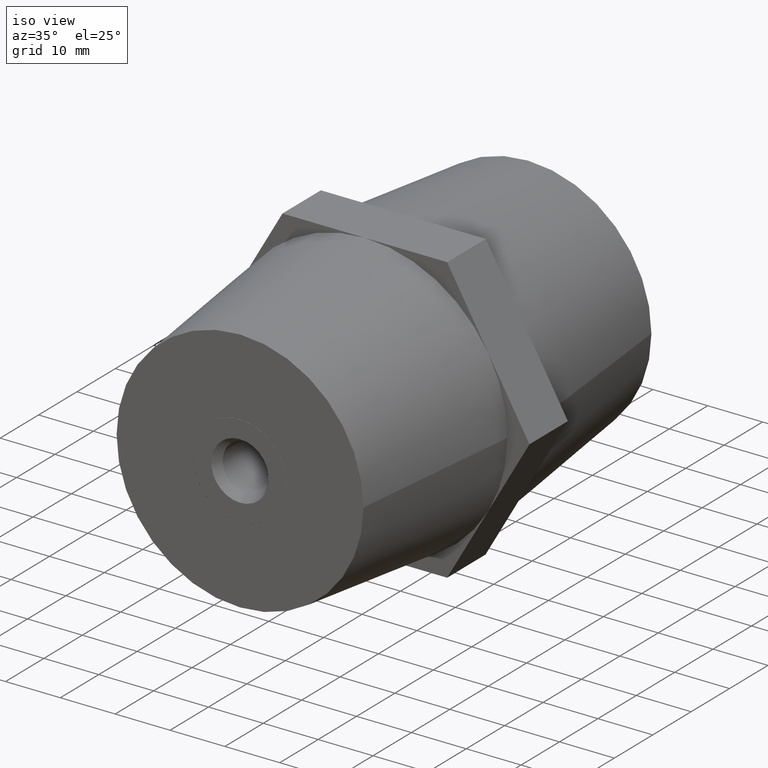
[diagram: clean part render]
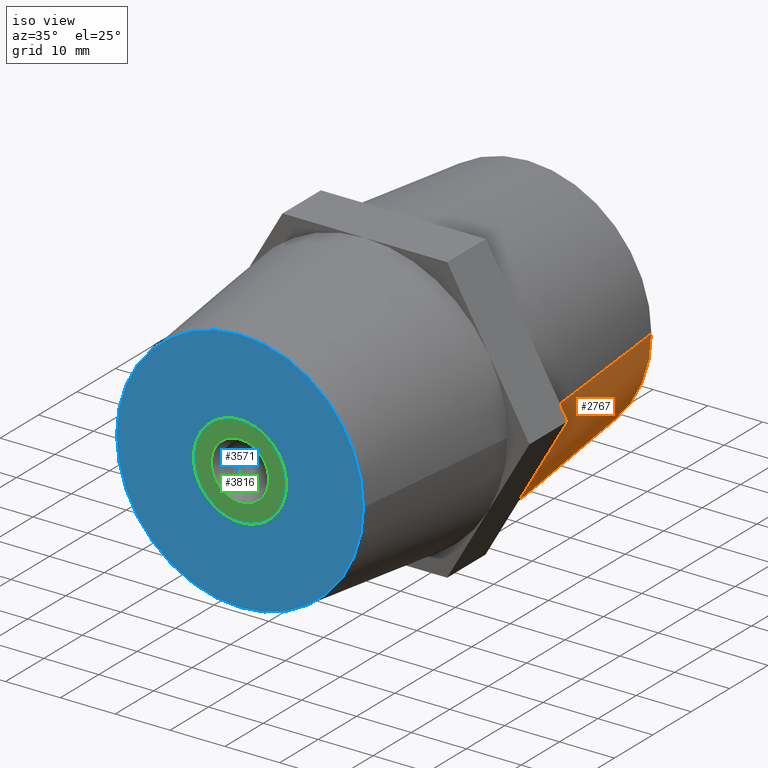
[diagram: same view with three faces highlighted in distinct colors, each labeled with its STEP entity id]
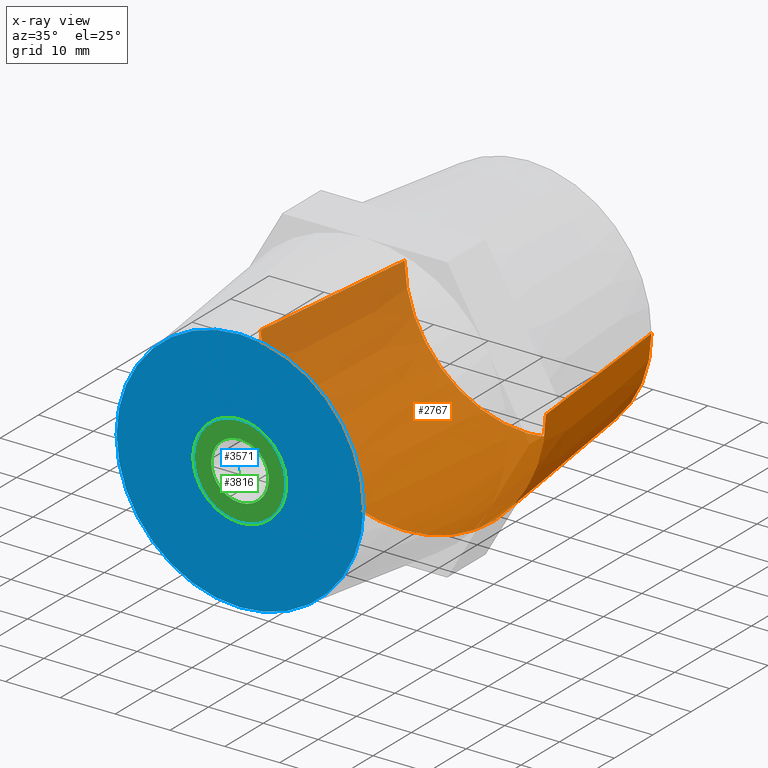
[diagram: x-ray of the same camera — body ghosted, the three highlighted faces saturated]
A machine part, iso view with three faces highlighted in distinct colors.
The next image is the same camera in x-ray (body ghosted, the three faces saturated) — at least one of them is partly hidden behind the body in this view.
Their STEP definitions:

[orange] entity #2767 — the highlighted conical surface has half-angle 6.147 deg.
#108 = LINE ( 'NONE', #629, #933 ) ;
#118 = DIRECTION ( 'NONE',  ( 1.000000000000000000, 0.0000000000000000000, 0.0000000000000000000 ) ) ;
#188 = ORIENTED_EDGE ( 'NONE', *, *, #345, .T. ) ;
#196 = CIRCLE ( 'NONE', #1039, 26.00000000000000000 ) ;
#278 = VERTEX_POINT ( 'NONE', #1783 ) ;
#345 = EDGE_CURVE ( 'NONE', #2445, #2419, #1085, .T. ) ;
#500 = AXIS2_PLACEMENT_3D ( 'NONE', #1423, #3244, #3556 ) ;
#629 = CARTESIAN_POINT ( 'NONE',  ( -22.50000000000000000, 37.50000000000000000, 2.755455298081544800E-015 ) ) ;
#741 = CARTESIAN_POINT ( 'NONE',  ( 26.00000000000001800, 5.000000000000000000, 0.0000000000000000000 ) ) ;
#761 = CARTESIAN_POINT ( 'NONE',  ( 22.50000000000000000, 37.50000000000000000, 0.0000000000000000000 ) ) ;
#844 = CIRCLE ( 'NONE', #3443, 26.00000000000000000 ) ;
#923 = DIRECTION ( 'NONE',  ( -1.000000000000000000, 0.0000000000000000000, 0.0000000000000000000 ) ) ;
#932 = DIRECTION ( 'NONE',  ( -1.387778780781445900E-016, 1.000000000000000000, 0.0000000000000000000 ) ) ;
#933 = VECTOR ( 'NONE', #3958, 1000.000000000000000 ) ;
#970 = ORIENTED_EDGE ( 'NONE', *, *, #3764, .T. ) ;
#1031 = EDGE_CURVE ( 'NONE', #2412, #2176, #1229, .T. ) ;
#1039 = AXIS2_PLACEMENT_3D ( 'NONE', #3515, #1695, #2628 ) ;
#1076 = DIRECTION ( 'NONE',  ( 1.387778780781445900E-016, -1.000000000000000000, 0.0000000000000000000 ) ) ;
#1085 = CIRCLE ( 'NONE', #2032, 26.00000000000000000 ) ;
#1096 = AXIS2_PLACEMENT_3D ( 'NONE', #1508, #1193, #923 ) ;
#1132 = ORIENTED_EDGE ( 'NONE', *, *, #3711, .T. ) ;
#1193 = DIRECTION ( 'NONE',  ( -1.387778780781445900E-016, 1.000000000000000000, 0.0000000000000000000 ) ) ;
#1201 = EDGE_LOOP ( 'NONE', ( #1883, #1673, #2599, #970, #188, #1132, #2713 ) ) ;
#1206 = VERTEX_POINT ( 'NONE', #3164 ) ;
#1229 = LINE ( 'NONE', #2073, #1953 ) ;
#1242 = DIRECTION ( 'NONE',  ( -1.000000000000000000, -1.334402673828313100E-016, 0.0000000000000000000 ) ) ;
#1373 = CONICAL_SURFACE ( 'NONE', #3418, 22.50000000000000000, 0.1072788556484030900 ) ;
#1423 = CARTESIAN_POINT ( 'NONE',  ( 4.510281037539699200E-015, 5.000000000000000000, 0.0000000000000000000 ) ) ;
#1508 = CARTESIAN_POINT ( 'NONE',  ( -4.333342374871279800E-031, 37.50000000000000000, 0.0000000000000000000 ) ) ;
#1673 = ORIENTED_EDGE ( 'NONE', *, *, #3472, .F. ) ;
#1695 = DIRECTION ( 'NONE',  ( -1.387778780781445900E-016, 1.000000000000000000, 0.0000000000000000000 ) ) ;
#1702 = EDGE_CURVE ( 'NONE', #278, #1206, #844, .T. ) ;
#1746 = DIRECTION ( 'NONE',  ( -1.000000000000000000, -1.334402673828313100E-016, 0.0000000000000000000 ) ) ;
#1773 = DIRECTION ( 'NONE',  ( 0.1070731997199519000, -0.9942511402566915900, 0.0000000000000000000 ) ) ;
#1783 = CARTESIAN_POINT ( 'NONE',  ( -22.51666049839540000, 5.000000000000000000, -13.00000000000000000 ) ) ;
#1883 = ORIENTED_EDGE ( 'NONE', *, *, #3054, .F. ) ;
#1953 = VECTOR ( 'NONE', #1773, 1000.000000000000000 ) ;
#1956 = CARTESIAN_POINT ( 'NONE',  ( -4.333342374871279800E-031, 5.000000000000000000, -26.00000000000000000 ) ) ;
#1998 = FACE_OUTER_BOUND ( 'NONE', #1201, .T. ) ;
#2032 = AXIS2_PLACEMENT_3D ( 'NONE', #2204, #932, #1242 ) ;
#2037 = DIRECTION ( 'NONE',  ( -1.387778780781445900E-016, 1.000000000000000000, 0.0000000000000000000 ) ) ;
#2073 = CARTESIAN_POINT ( 'NONE',  ( 22.50000000000000000, 37.50000000000000000, 0.0000000000000000000 ) ) ;
#2141 = CIRCLE ( 'NONE', #500, 26.00000000000000000 ) ;
#2176 = VERTEX_POINT ( 'NONE', #741 ) ;
#2204 = CARTESIAN_POINT ( 'NONE',  ( 4.510281037539699200E-015, 5.000000000000000000, 0.0000000000000000000 ) ) ;
#2412 = VERTEX_POINT ( 'NONE', #761 ) ;
#2419 = VERTEX_POINT ( 'NONE', #1956 ) ;
#2445 = VERTEX_POINT ( 'NONE', #2814 ) ;
#2599 = ORIENTED_EDGE ( 'NONE', *, *, #1031, .T. ) ;
#2628 = DIRECTION ( 'NONE',  ( -1.000000000000000000, -1.334402673828313100E-016, 0.0000000000000000000 ) ) ;
#2713 = ORIENTED_EDGE ( 'NONE', *, *, #1702, .T. ) ;
#2767 = ADVANCED_FACE ( 'NONE', ( #1998 ), #1373, .T. ) ;
#2811 = VERTEX_POINT ( 'NONE', #3212 ) ;
#2814 = CARTESIAN_POINT ( 'NONE',  ( 22.51666049839540000, 5.000000000000000000, -13.00000000000000000 ) ) ;
#3054 = EDGE_CURVE ( 'NONE', #2811, #1206, #108, .T. ) ;
#3164 = CARTESIAN_POINT ( 'NONE',  ( -26.00000000000000700, 5.000000000000000000, 3.184081677783119800E-015 ) ) ;
#3194 = CARTESIAN_POINT ( 'NONE',  ( 4.510281037539699200E-015, 5.000000000000000000, 0.0000000000000000000 ) ) ;
#3212 = CARTESIAN_POINT ( 'NONE',  ( -22.50000000000000000, 37.50000000000000000, 2.969768487932332100E-015 ) ) ;
#3238 = CIRCLE ( 'NONE', #1096, 22.50000000000000000 ) ;
#3244 = DIRECTION ( 'NONE',  ( -1.387778780781445900E-016, 1.000000000000000000, 0.0000000000000000000 ) ) ;
#3418 = AXIS2_PLACEMENT_3D ( 'NONE', #3535, #1076, #118 ) ;
#3443 = AXIS2_PLACEMENT_3D ( 'NONE', #3194, #2037, #1746 ) ;
#3472 = EDGE_CURVE ( 'NONE', #2412, #2811, #3238, .T. ) ;
#3515 = CARTESIAN_POINT ( 'NONE',  ( 4.510281037539699200E-015, 5.000000000000000000, 0.0000000000000000000 ) ) ;
#3535 = CARTESIAN_POINT ( 'NONE',  ( -4.333342374871279800E-031, 37.50000000000000000, 0.0000000000000000000 ) ) ;
#3556 = DIRECTION ( 'NONE',  ( -1.000000000000000000, -1.334402673828313100E-016, 0.0000000000000000000 ) ) ;
#3711 = EDGE_CURVE ( 'NONE', #2419, #278, #196, .T. ) ;
#3764 = EDGE_CURVE ( 'NONE', #2176, #2445, #2141, .T. ) ;
#3958 = DIRECTION ( 'NONE',  ( -0.1070731997199516200, -0.9942511402566915900, 1.311268513115041900E-017 ) ) ;

[blue] entity #3571 — the highlighted planar face has unit normal (0, -1, 0).
#7 = CIRCLE ( 'NONE', #3348, 8.509999999999999800 ) ;
#36 = DIRECTION ( 'NONE',  ( 1.387778780781445900E-016, -1.000000000000000000, 0.0000000000000000000 ) ) ;
#170 = DIRECTION ( 'NONE',  ( 1.000000000000000000, 0.0000000000000000000, 1.776356839400250500E-015 ) ) ;
#187 = VERTEX_POINT ( 'NONE', #2056 ) ;
#192 = ORIENTED_EDGE ( 'NONE', *, *, #471, .T. ) ;
#201 = VERTEX_POINT ( 'NONE', #2378 ) ;
#250 = CARTESIAN_POINT ( 'NONE',  ( 1.180999742445008000E-015, -37.50000000000000000, 0.0000000000000000000 ) ) ;
#267 = VECTOR ( 'NONE', #3883, 1000.000000000000000 ) ;
#273 = ORIENTED_EDGE ( 'NONE', *, *, #3332, .T. ) ;
#285 = EDGE_CURVE ( 'NONE', #3763, #871, #319, .T. ) ;
#317 = EDGE_CURVE ( 'NONE', #187, #917, #1482, .T. ) ;
#319 = CIRCLE ( 'NONE', #1764, 8.509999999999999800 ) ;
#324 = ORIENTED_EDGE ( 'NONE', *, *, #2448, .T. ) ;
#382 = DIRECTION ( 'NONE',  ( -1.387778780781445900E-016, 1.000000000000000000, -0.0000000000000000000 ) ) ;
#399 = CARTESIAN_POINT ( 'NONE',  ( -3.892823573006134900, -37.50000000000000000, 7.567431838440819900 ) ) ;
#411 = LINE ( 'NONE', #1342, #847 ) ;
#412 = AXIS2_PLACEMENT_3D ( 'NONE', #250, #3036, #1526 ) ;
#456 = CARTESIAN_POINT ( 'NONE',  ( 1.180999742445008000E-015, -37.50000000000000000, 0.0000000000000000000 ) ) ;
#471 = EDGE_CURVE ( 'NONE', #726, #201, #411, .T. ) ;
#493 = EDGE_CURVE ( 'NONE', #201, #2014, #2691, .T. ) ;
#496 = FACE_OUTER_BOUND ( 'NONE', #2433, .T. ) ;
#526 = ORIENTED_EDGE ( 'NONE', *, *, #2230, .T. ) ;
#710 = AXIS2_PLACEMENT_3D ( 'NONE', #2931, #1386, #1659 ) ;
#726 = VERTEX_POINT ( 'NONE', #3481 ) ;
#738 = AXIS2_PLACEMENT_3D ( 'NONE', #456, #2663, #170 ) ;
#752 = CARTESIAN_POINT ( 'NONE',  ( 1.180999742445008000E-015, -37.50000000000000000, 0.0000000000000000000 ) ) ;
#764 = VERTEX_POINT ( 'NONE', #3757 ) ;
#783 = VECTOR ( 'NONE', #2462, 1000.000000000000000 ) ;
#798 = VERTEX_POINT ( 'NONE', #2607 ) ;
#817 = VERTEX_POINT ( 'NONE', #399 ) ;
#819 = VERTEX_POINT ( 'NONE', #2868 ) ;
#847 = VECTOR ( 'NONE', #3788, 1000.000000000000000 ) ;
#871 = VERTEX_POINT ( 'NONE', #3531 ) ;
#876 = DIRECTION ( 'NONE',  ( 1.000000000000000000, 0.0000000000000000000, 0.0000000000000000000 ) ) ;
#881 = DIRECTION ( 'NONE',  ( -0.8660254037844387100, -1.201851678989727800E-016, 0.4999999999999998900 ) ) ;
#904 = CARTESIAN_POINT ( 'NONE',  ( 1.180999742445008000E-015, -37.50000000000000000, 0.0000000000000000000 ) ) ;
#917 = VERTEX_POINT ( 'NONE', #2332 ) ;
#934 = AXIS2_PLACEMENT_3D ( 'NONE', #2202, #1341, #2529 ) ;
#963 = ORIENTED_EDGE ( 'NONE', *, *, #1010, .T. ) ;
#997 = CARTESIAN_POINT ( 'NONE',  ( 8.500000000000000000, -37.50000000000000000, 0.4124318125461929900 ) ) ;
#1010 = EDGE_CURVE ( 'NONE', #2014, #2029, #2686, .T. ) ;
#1049 = ORIENTED_EDGE ( 'NONE', *, *, #1436, .T. ) ;
#1053 = DIRECTION ( 'NONE',  ( 1.000000000000000000, 0.0000000000000000000, 1.776356839400250500E-015 ) ) ;
#1079 = CIRCLE ( 'NONE', #934, 22.50000000000000000 ) ;
#1123 = VECTOR ( 'NONE', #881, 1000.000000000000000 ) ;
#1148 = ORIENTED_EDGE ( 'NONE', *, *, #3371, .T. ) ;
#1155 = DIRECTION ( 'NONE',  ( 1.000000000000000000, 0.0000000000000000000, 0.0000000000000000000 ) ) ;
#1170 = AXIS2_PLACEMENT_3D ( 'NONE', #752, #382, #1053 ) ;
#1212 = ORIENTED_EDGE ( 'NONE', *, *, #317, .F. ) ;
#1250 = AXIS2_PLACEMENT_3D ( 'NONE', #1889, #36, #2208 ) ;
#1272 = PLANE ( 'NONE',  #1250 ) ;
#1274 = CARTESIAN_POINT ( 'NONE',  ( 8.500000000000000000, -37.50000000000000000, -0.4124318125462110300 ) ) ;
#1341 = DIRECTION ( 'NONE',  ( -1.387778780781445900E-016, 1.000000000000000000, 0.0000000000000000000 ) ) ;
#1342 = CARTESIAN_POINT ( 'NONE',  ( -12.62500000000000000, -37.50000000000000000, 17.10400172474265200 ) ) ;
#1357 = EDGE_CURVE ( 'NONE', #817, #819, #3613, .T. ) ;
#1386 = DIRECTION ( 'NONE',  ( -1.387778780781445900E-016, 1.000000000000000000, -0.0000000000000000000 ) ) ;
#1411 = CARTESIAN_POINT ( 'NONE',  ( -4.607176426993800300, -37.50000000000000000, -7.155000025894669800 ) ) ;
#1431 = CARTESIAN_POINT ( 'NONE',  ( -12.62500000000000000, -37.50000000000000000, -17.10400172474265200 ) ) ;
#1436 = EDGE_CURVE ( 'NONE', #798, #817, #2010, .T. ) ;
#1473 = DIRECTION ( 'NONE',  ( 3.534857879381550100E-016, 4.905600758083819500E-032, -1.000000000000000000 ) ) ;
#1482 = CIRCLE ( 'NONE', #3847, 22.50000000000000000 ) ;
#1523 = ORIENTED_EDGE ( 'NONE', *, *, #3668, .T. ) ;
#1526 = DIRECTION ( 'NONE',  ( 1.000000000000000000, 0.0000000000000000000, -1.776356839400250500E-015 ) ) ;
#1613 = CARTESIAN_POINT ( 'NONE',  ( 1.180999742445008000E-015, -37.50000000000000000, 0.0000000000000000000 ) ) ;
#1659 = DIRECTION ( 'NONE',  ( 1.000000000000000000, 0.0000000000000000000, -5.329070518200751400E-015 ) ) ;
#1697 = EDGE_LOOP ( 'NONE', ( #192, #2892, #963, #324, #273, #2900, #1148, #2662, #3117, #526, #1049, #2742, #1523 ) ) ;
#1750 = LINE ( 'NONE', #2738, #1123 ) ;
#1764 = AXIS2_PLACEMENT_3D ( 'NONE', #904, #2126, #876 ) ;
#1874 = DIRECTION ( 'NONE',  ( -1.387778780781445900E-016, 1.000000000000000000, -0.0000000000000000000 ) ) ;
#1889 = CARTESIAN_POINT ( 'NONE',  ( -22.50000000000000000, -37.50000000000000000, 0.0000000000000000000 ) ) ;
#1909 = AXIS2_PLACEMENT_3D ( 'NONE', #1613, #1874, #2199 ) ;
#1996 = LINE ( 'NONE', #1431, #3012 ) ;
#2010 = LINE ( 'NONE', #3832, #267 ) ;
#2014 = VERTEX_POINT ( 'NONE', #997 ) ;
#2029 = VERTEX_POINT ( 'NONE', #1274 ) ;
#2056 = CARTESIAN_POINT ( 'NONE',  ( 22.50000000000001100, -37.50000000000000000, 2.969768487932332100E-015 ) ) ;
#2126 = DIRECTION ( 'NONE',  ( -1.387778780781445900E-016, 1.000000000000000000, -0.0000000000000000000 ) ) ;
#2199 = DIRECTION ( 'NONE',  ( 1.000000000000000000, 0.0000000000000000000, 0.0000000000000000000 ) ) ;
#2202 = CARTESIAN_POINT ( 'NONE',  ( 1.040834085586083900E-014, -37.50000000000000000, 0.0000000000000000000 ) ) ;
#2208 = DIRECTION ( 'NONE',  ( 1.000000000000000000, 1.387778780781445900E-016, 0.0000000000000000000 ) ) ;
#2230 = EDGE_CURVE ( 'NONE', #764, #798, #2920, .T. ) ;
#2332 = CARTESIAN_POINT ( 'NONE',  ( -22.49999999999998900, -37.50000000000000000, 0.0000000000000000000 ) ) ;
#2378 = CARTESIAN_POINT ( 'NONE',  ( 4.607176426993860700, -37.50000000000000000, 7.155000025894629800 ) ) ;
#2433 = EDGE_LOOP ( 'NONE', ( #3289, #1212 ) ) ;
#2440 = FACE_BOUND ( 'NONE', #1697, .T. ) ;
#2448 = EDGE_CURVE ( 'NONE', #2029, #3579, #2684, .T. ) ;
#2462 = DIRECTION ( 'NONE',  ( 0.0000000000000000000, 0.0000000000000000000, 1.000000000000000000 ) ) ;
#2518 = DIRECTION ( 'NONE',  ( -1.000000000000000000, 0.0000000000000000000, 0.0000000000000000000 ) ) ;
#2529 = DIRECTION ( 'NONE',  ( -1.000000000000000000, 0.0000000000000000000, 0.0000000000000000000 ) ) ;
#2561 = VERTEX_POINT ( 'NONE', #3952 ) ;
#2607 = CARTESIAN_POINT ( 'NONE',  ( -4.607176426993860700, -37.50000000000000000, 7.155000025894629800 ) ) ;
#2651 = EDGE_CURVE ( 'NONE', #917, #187, #1079, .T. ) ;
#2662 = ORIENTED_EDGE ( 'NONE', *, *, #285, .T. ) ;
#2663 = DIRECTION ( 'NONE',  ( -1.387778780781445900E-016, 1.000000000000000000, -0.0000000000000000000 ) ) ;
#2684 = CIRCLE ( 'NONE', #1909, 8.509999999999999800 ) ;
#2686 = LINE ( 'NONE', #3264, #3572 ) ;
#2691 = CIRCLE ( 'NONE', #738, 8.509999999999999800 ) ;
#2692 = DIRECTION ( 'NONE',  ( -1.387778780781445900E-016, 1.000000000000000000, -0.0000000000000000000 ) ) ;
#2726 = CARTESIAN_POINT ( 'NONE',  ( -8.500000000000000000, -37.50000000000000000, 0.0000000000000000000 ) ) ;
#2738 = CARTESIAN_POINT ( 'NONE',  ( -21.12500000000000000, -37.50000000000000000, 2.381569860407205300 ) ) ;
#2742 = ORIENTED_EDGE ( 'NONE', *, *, #1357, .T. ) ;
#2772 = CARTESIAN_POINT ( 'NONE',  ( 1.040834085586083900E-014, -37.50000000000000000, 0.0000000000000000000 ) ) ;
#2842 = EDGE_CURVE ( 'NONE', #2561, #3903, #7, .T. ) ;
#2868 = CARTESIAN_POINT ( 'NONE',  ( -5.777789833161707600E-031, -37.50000000000000000, 8.509999999999999800 ) ) ;
#2892 = ORIENTED_EDGE ( 'NONE', *, *, #493, .T. ) ;
#2900 = ORIENTED_EDGE ( 'NONE', *, *, #2842, .T. ) ;
#2920 = CIRCLE ( 'NONE', #412, 8.509999999999999800 ) ;
#2931 = CARTESIAN_POINT ( 'NONE',  ( 1.180999742445008000E-015, -37.50000000000000000, 0.0000000000000000000 ) ) ;
#2996 = CARTESIAN_POINT ( 'NONE',  ( 1.180999742445008000E-015, -37.50000000000000000, 0.0000000000000000000 ) ) ;
#3012 = VECTOR ( 'NONE', #3560, 1000.000000000000000 ) ;
#3036 = DIRECTION ( 'NONE',  ( -1.387778780781445900E-016, 1.000000000000000000, -0.0000000000000000000 ) ) ;
#3075 = DIRECTION ( 'NONE',  ( -1.387778780781445900E-016, 1.000000000000000000, 0.0000000000000000000 ) ) ;
#3117 = ORIENTED_EDGE ( 'NONE', *, *, #3376, .T. ) ;
#3264 = CARTESIAN_POINT ( 'NONE',  ( 8.500000000000000000, -37.50000000000000000, 1.095805942608280000E-014 ) ) ;
#3289 = ORIENTED_EDGE ( 'NONE', *, *, #2651, .F. ) ;
#3332 = EDGE_CURVE ( 'NONE', #3579, #2561, #1996, .T. ) ;
#3348 = AXIS2_PLACEMENT_3D ( 'NONE', #2996, #2692, #1155 ) ;
#3371 = EDGE_CURVE ( 'NONE', #3903, #3763, #1750, .T. ) ;
#3374 = CIRCLE ( 'NONE', #1170, 8.509999999999999800 ) ;
#3376 = EDGE_CURVE ( 'NONE', #871, #764, #3686, .T. ) ;
#3481 = CARTESIAN_POINT ( 'NONE',  ( 3.892823573006134900, -37.50000000000000000, 7.567431838440819900 ) ) ;
#3531 = CARTESIAN_POINT ( 'NONE',  ( -8.500000000000000000, -37.50000000000000000, -0.4124318125460915100 ) ) ;
#3560 = DIRECTION ( 'NONE',  ( -0.8660254037844387100, -1.201851678989725800E-016, -0.4999999999999998900 ) ) ;
#3571 = ADVANCED_FACE ( 'NONE', ( #496, #2440 ), #1272, .T. ) ;
#3572 = VECTOR ( 'NONE', #1473, 1000.000000000000000 ) ;
#3579 = VERTEX_POINT ( 'NONE', #3714 ) ;
#3613 = CIRCLE ( 'NONE', #710, 8.509999999999999800 ) ;
#3668 = EDGE_CURVE ( 'NONE', #819, #726, #3374, .T. ) ;
#3686 = LINE ( 'NONE', #2726, #783 ) ;
#3714 = CARTESIAN_POINT ( 'NONE',  ( 4.607176426993810000, -37.50000000000000000, -7.155000025894669800 ) ) ;
#3757 = CARTESIAN_POINT ( 'NONE',  ( -8.500000000000000000, -37.50000000000000000, 0.4124318125460915100 ) ) ;
#3763 = VERTEX_POINT ( 'NONE', #1411 ) ;
#3788 = DIRECTION ( 'NONE',  ( 0.8660254037844387100, 1.201851678989727800E-016, -0.4999999999999998900 ) ) ;
#3832 = CARTESIAN_POINT ( 'NONE',  ( -21.12500000000000000, -37.50000000000000000, -2.381569860407209700 ) ) ;
#3847 = AXIS2_PLACEMENT_3D ( 'NONE', #2772, #3075, #2518 ) ;
#3883 = DIRECTION ( 'NONE',  ( 0.8660254037844387100, 1.201851678989725800E-016, 0.4999999999999998900 ) ) ;
#3903 = VERTEX_POINT ( 'NONE', #3937 ) ;
#3937 = CARTESIAN_POINT ( 'NONE',  ( -3.892823573006190000, -37.50000000000000000, -7.567431838440789700 ) ) ;
#3952 = CARTESIAN_POINT ( 'NONE',  ( 3.892823573006195300, -37.50000000000000000, -7.567431838440789700 ) ) ;

[green] entity #3816 — the highlighted planar face has unit normal (-0, -1, 0).
#24 = AXIS2_PLACEMENT_3D ( 'NONE', #3193, #2291, #2603 ) ;
#105 = EDGE_CURVE ( 'NONE', #2556, #3365, #3305, .T. ) ;
#128 = EDGE_LOOP ( 'NONE', ( #1488, #2135 ) ) ;
#166 = CIRCLE ( 'NONE', #2212, 8.500000000000000000 ) ;
#257 = EDGE_CURVE ( 'NONE', #3364, #1979, #2009, .T. ) ;
#270 = AXIS2_PLACEMENT_3D ( 'NONE', #854, #2407, #3337 ) ;
#339 = DIRECTION ( 'NONE',  ( 0.0000000000000000000, 0.0000000000000000000, 1.000000000000000000 ) ) ;
#435 = ORIENTED_EDGE ( 'NONE', *, *, #3614, .F. ) ;
#455 = CARTESIAN_POINT ( 'NONE',  ( 4.250000000000000000, 17.00000000000000000, 7.361215932167730200 ) ) ;
#478 = AXIS2_PLACEMENT_3D ( 'NONE', #1574, #1850, #1207 ) ;
#579 = CARTESIAN_POINT ( 'NONE',  ( -4.250000000000000000, 17.00000000000000000, -7.361215932167730200 ) ) ;
#585 = CARTESIAN_POINT ( 'NONE',  ( 0.0000000000000000000, 17.00000000000000000, 0.0000000000000000000 ) ) ;
#705 = AXIS2_PLACEMENT_3D ( 'NONE', #1752, #1796, #2390 ) ;
#721 = CARTESIAN_POINT ( 'NONE',  ( 0.0000000000000000000, 17.00000000000000000, 0.0000000000000000000 ) ) ;
#724 = ORIENTED_EDGE ( 'NONE', *, *, #105, .F. ) ;
#779 = EDGE_CURVE ( 'NONE', #2792, #3550, #166, .T. ) ;
#854 = CARTESIAN_POINT ( 'NONE',  ( 0.0000000000000000000, 17.00000000000000000, 0.0000000000000000000 ) ) ;
#875 = PLANE ( 'NONE',  #705 ) ;
#940 = AXIS2_PLACEMENT_3D ( 'NONE', #1228, #2414, #3913 ) ;
#1004 = EDGE_CURVE ( 'NONE', #2363, #3498, #1426, .T. ) ;
#1073 = FACE_BOUND ( 'NONE', #128, .T. ) ;
#1081 = CIRCLE ( 'NONE', #478, 8.500000000000000000 ) ;
#1090 = EDGE_CURVE ( 'NONE', #3365, #2792, #1081, .T. ) ;
#1179 = CIRCLE ( 'NONE', #2276, 8.500000000000000000 ) ;
#1207 = DIRECTION ( 'NONE',  ( 3.552713678800500900E-015, 0.0000000000000000000, 1.000000000000000000 ) ) ;
#1228 = CARTESIAN_POINT ( 'NONE',  ( 0.0000000000000000000, 17.00000000000000000, 0.0000000000000000000 ) ) ;
#1338 = DIRECTION ( 'NONE',  ( 0.0000000000000000000, 0.0000000000000000000, 1.000000000000000000 ) ) ;
#1426 = CIRCLE ( 'NONE', #270, 5.250000000000000000 ) ;
#1439 = DIRECTION ( 'NONE',  ( -0.0000000000000000000, -1.000000000000000000, -0.0000000000000000000 ) ) ;
#1485 = EDGE_CURVE ( 'NONE', #3550, #2474, #1179, .T. ) ;
#1488 = ORIENTED_EDGE ( 'NONE', *, *, #2477, .F. ) ;
#1547 = CARTESIAN_POINT ( 'NONE',  ( 4.250000000000000000, 17.00000000000000000, -7.361215932167730200 ) ) ;
#1562 = CARTESIAN_POINT ( 'NONE',  ( 0.0000000000000000000, 17.00000000000000000, 5.250000000000000000 ) ) ;
#1574 = CARTESIAN_POINT ( 'NONE',  ( 0.0000000000000000000, 17.00000000000000000, 0.0000000000000000000 ) ) ;
#1752 = CARTESIAN_POINT ( 'NONE',  ( 0.0000000000000000000, 17.00000000000000000, 0.0000000000000000000 ) ) ;
#1796 = DIRECTION ( 'NONE',  ( 0.0000000000000000000, 1.000000000000000000, 0.0000000000000000000 ) ) ;
#1849 = EDGE_LOOP ( 'NONE', ( #2835, #2116, #2080, #724, #2400, #2038, #435 ) ) ;
#1850 = DIRECTION ( 'NONE',  ( -0.0000000000000000000, -1.000000000000000000, -0.0000000000000000000 ) ) ;
#1851 = CIRCLE ( 'NONE', #2669, 5.250000000000000000 ) ;
#1979 = VERTEX_POINT ( 'NONE', #2240 ) ;
#1992 = DIRECTION ( 'NONE',  ( -0.0000000000000000000, -1.000000000000000000, -0.0000000000000000000 ) ) ;
#2000 = AXIS2_PLACEMENT_3D ( 'NONE', #585, #3625, #2744 ) ;
#2009 = CIRCLE ( 'NONE', #940, 8.500000000000000000 ) ;
#2038 = ORIENTED_EDGE ( 'NONE', *, *, #257, .F. ) ;
#2080 = ORIENTED_EDGE ( 'NONE', *, *, #1090, .F. ) ;
#2116 = ORIENTED_EDGE ( 'NONE', *, *, #779, .F. ) ;
#2135 = ORIENTED_EDGE ( 'NONE', *, *, #1004, .F. ) ;
#2212 = AXIS2_PLACEMENT_3D ( 'NONE', #2594, #1992, #1338 ) ;
#2240 = CARTESIAN_POINT ( 'NONE',  ( 0.0000000000000000000, 17.00000000000000000, -8.500000000000001800 ) ) ;
#2276 = AXIS2_PLACEMENT_3D ( 'NONE', #3846, #1439, #2999 ) ;
#2291 = DIRECTION ( 'NONE',  ( -0.0000000000000000000, -1.000000000000000000, -0.0000000000000000000 ) ) ;
#2363 = VERTEX_POINT ( 'NONE', #3458 ) ;
#2390 = DIRECTION ( 'NONE',  ( 0.0000000000000000000, 0.0000000000000000000, 1.000000000000000000 ) ) ;
#2400 = ORIENTED_EDGE ( 'NONE', *, *, #3970, .F. ) ;
#2407 = DIRECTION ( 'NONE',  ( 0.0000000000000000000, 1.000000000000000000, 0.0000000000000000000 ) ) ;
#2414 = DIRECTION ( 'NONE',  ( -0.0000000000000000000, -1.000000000000000000, -0.0000000000000000000 ) ) ;
#2474 = VERTEX_POINT ( 'NONE', #3392 ) ;
#2477 = EDGE_CURVE ( 'NONE', #3498, #2363, #1851, .T. ) ;
#2556 = VERTEX_POINT ( 'NONE', #1547 ) ;
#2560 = DIRECTION ( 'NONE',  ( -0.0000000000000000000, -1.000000000000000000, -0.0000000000000000000 ) ) ;
#2588 = DIRECTION ( 'NONE',  ( 0.0000000000000000000, 0.0000000000000000000, 1.000000000000000000 ) ) ;
#2594 = CARTESIAN_POINT ( 'NONE',  ( 0.0000000000000000000, 17.00000000000000000, 0.0000000000000000000 ) ) ;
#2603 = DIRECTION ( 'NONE',  ( -1.776356839400250500E-015, 0.0000000000000000000, 1.000000000000000000 ) ) ;
#2669 = AXIS2_PLACEMENT_3D ( 'NONE', #2757, #2783, #339 ) ;
#2744 = DIRECTION ( 'NONE',  ( 0.0000000000000000000, 0.0000000000000000000, 1.000000000000000000 ) ) ;
#2757 = CARTESIAN_POINT ( 'NONE',  ( 0.0000000000000000000, 17.00000000000000000, 0.0000000000000000000 ) ) ;
#2783 = DIRECTION ( 'NONE',  ( 0.0000000000000000000, 1.000000000000000000, 0.0000000000000000000 ) ) ;
#2792 = VERTEX_POINT ( 'NONE', #455 ) ;
#2827 = AXIS2_PLACEMENT_3D ( 'NONE', #721, #2560, #2588 ) ;
#2835 = ORIENTED_EDGE ( 'NONE', *, *, #1485, .F. ) ;
#2860 = CIRCLE ( 'NONE', #2827, 8.500000000000000000 ) ;
#2999 = DIRECTION ( 'NONE',  ( 0.0000000000000000000, 0.0000000000000000000, 1.000000000000000000 ) ) ;
#3137 = CIRCLE ( 'NONE', #2000, 8.500000000000000000 ) ;
#3193 = CARTESIAN_POINT ( 'NONE',  ( 0.0000000000000000000, 17.00000000000000000, 0.0000000000000000000 ) ) ;
#3283 = FACE_OUTER_BOUND ( 'NONE', #1849, .T. ) ;
#3305 = CIRCLE ( 'NONE', #24, 8.500000000000000000 ) ;
#3337 = DIRECTION ( 'NONE',  ( 0.0000000000000000000, 0.0000000000000000000, 1.000000000000000000 ) ) ;
#3364 = VERTEX_POINT ( 'NONE', #579 ) ;
#3365 = VERTEX_POINT ( 'NONE', #3930 ) ;
#3392 = CARTESIAN_POINT ( 'NONE',  ( -8.500000000000000000, 17.00000000000000000, 0.0000000000000000000 ) ) ;
#3458 = CARTESIAN_POINT ( 'NONE',  ( 6.429395695523604200E-016, 17.00000000000000000, -5.250000000000000000 ) ) ;
#3498 = VERTEX_POINT ( 'NONE', #1562 ) ;
#3550 = VERTEX_POINT ( 'NONE', #3971 ) ;
#3614 = EDGE_CURVE ( 'NONE', #2474, #3364, #2860, .T. ) ;
#3625 = DIRECTION ( 'NONE',  ( -0.0000000000000000000, -1.000000000000000000, -0.0000000000000000000 ) ) ;
#3816 = ADVANCED_FACE ( 'NONE', ( #3283, #1073 ), #875, .T. ) ;
#3846 = CARTESIAN_POINT ( 'NONE',  ( 0.0000000000000000000, 17.00000000000000000, 0.0000000000000000000 ) ) ;
#3913 = DIRECTION ( 'NONE',  ( 2.664535259100376100E-015, 0.0000000000000000000, 1.000000000000000000 ) ) ;
#3930 = CARTESIAN_POINT ( 'NONE',  ( 8.500000000000000000, 17.00000000000000000, -3.004629197474319600E-015 ) ) ;
#3970 = EDGE_CURVE ( 'NONE', #1979, #2556, #3137, .T. ) ;
#3971 = CARTESIAN_POINT ( 'NONE',  ( -4.250000000000000000, 17.00000000000000000, 7.361215932167730200 ) ) ;